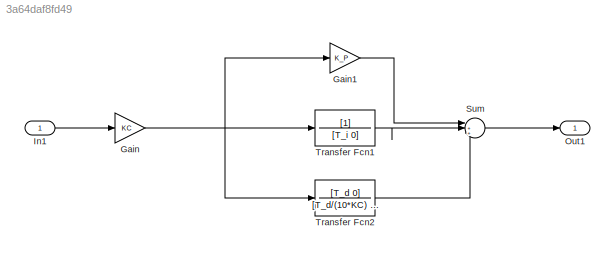
MODEL slx_3a64daf8fd49
KIND model
CONFIG AbsTol = auto
CONFIG EnableMultiTasking = off
CONFIG FixedStep = auto
CONFIG MaxStep = auto
CONFIG MinStep = auto
CONFIG RelTol = 1e-3
CONFIG SampleTimeConstraint = Unconstrained
CONFIG SolverName = VariableStepAuto
CONFIG StartTime = t(1)
CONFIG StopTime = t(end)
BLOCK [Gain] Gain
  Gain = KC
BLOCK [Gain] Gain1
  Gain = K_P
BLOCK [Inport] In1
BLOCK [Outport] Out1
BLOCK [Sum] Sum
  Inputs = |+++
BLOCK [TransferFcn] Transfer Fcn1
  Denominator = [T_i 0]
BLOCK [TransferFcn] Transfer Fcn2
  Denominator = [T_d/(10*KC) 1]
  Numerator = [T_d 0]
LINE Gain1:1 -> Sum:1
NET Gain:1 -> Gain1:1, Transfer Fcn1:1, Transfer Fcn2:1
LINE In1:1 -> Gain:1
LINE Sum:1 -> Out1:1
LINE Transfer Fcn1:1 -> Sum:2
LINE Transfer Fcn2:1 -> Sum:3
note: NET lines group one-source signal fan-out (src -> all destinations, sorted); 1:1 wires keep LINE
